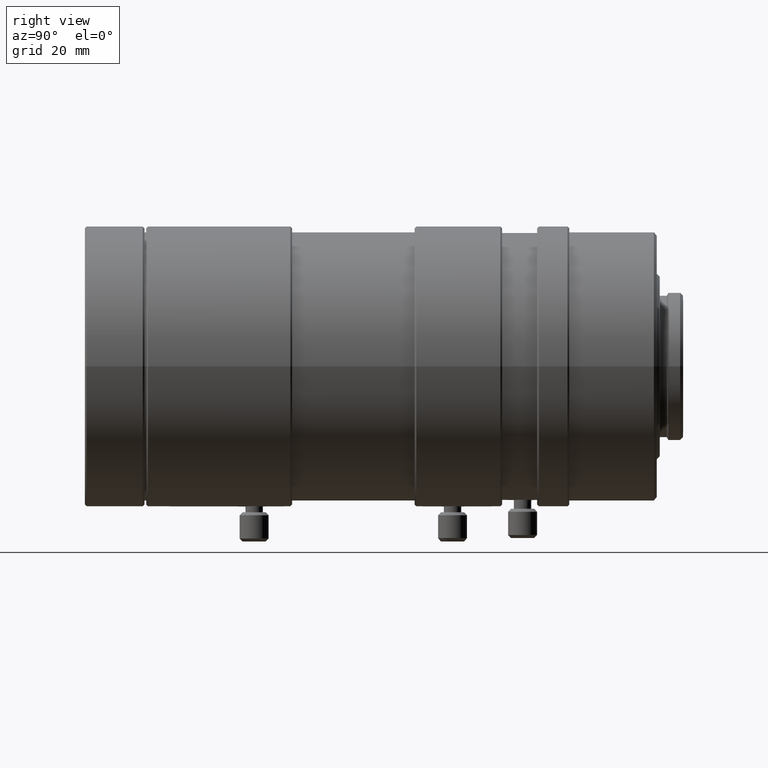
[diagram: clean part render]
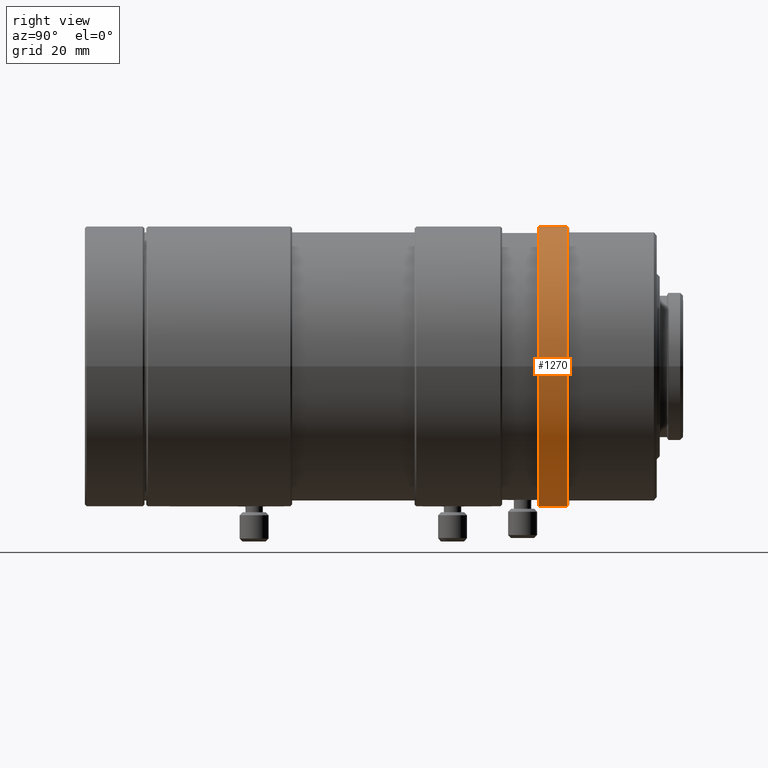
[diagram: same view with one face highlighted and labeled with its STEP entity id]
A machine part, right view. The second image highlights one B-rep face of the part: STEP entity #1270.
In plain terms, the highlighted cylindrical surface (bore or boss wall) has radius 24 mm, axis along (-0, -1, 0).
Its self-contained STEP definition (entity closure, byte-faithful):
#61=CYLINDRICAL_SURFACE('',#1395,24.);
#165=ORIENTED_EDGE('',*,*,#258,.T.);
#166=ORIENTED_EDGE('',*,*,#257,.F.);
#257=EDGE_CURVE('',#327,#327,#394,.T.);
#258=EDGE_CURVE('',#328,#328,#395,.T.);
#327=VERTEX_POINT('',#1896);
#328=VERTEX_POINT('',#1899);
#394=CIRCLE('',#1394,24.);
#395=CIRCLE('',#1396,24.);
#512=EDGE_LOOP('',(#165));
#513=EDGE_LOOP('',(#166));
#652=FACE_BOUND('',#512,.T.);
#653=FACE_BOUND('',#513,.T.);
#1270=ADVANCED_FACE('',(#652,#653),#61,.T.);
#1394=AXIS2_PLACEMENT_3D('',#1895,#1632,#1633);
#1395=AXIS2_PLACEMENT_3D('',#1897,#1634,#1635);
#1396=AXIS2_PLACEMENT_3D('',#1898,#1636,#1637);
#1632=DIRECTION('',(-6.12303176911189E-17,-1.,1.69202101686471E-17));
#1633=DIRECTION('',(1.,-6.12303176911189E-17,0.));
#1634=DIRECTION('',(-6.12303176911189E-17,-1.,1.69202101686471E-17));
#1635=DIRECTION('',(1.,-6.12303176911189E-17,0.));
#1636=DIRECTION('',(-6.12303176911189E-17,-1.,1.69202101686471E-17));
#1637=DIRECTION('',(1.,-6.12303176911189E-17,0.));
#1895=CARTESIAN_POINT('',(4.76371871636905E-15,77.8,-1.31639235112074E-15));
#1896=CARTESIAN_POINT('',(24.,77.8,-1.31639235112074E-15));
#1897=CARTESIAN_POINT('',(0.,0.,0.));
#1898=CARTESIAN_POINT('',(5.06374727305553E-15,82.7,-1.39930138094712E-15));
#1899=CARTESIAN_POINT('',(24.,82.7,-1.39930138094712E-15));